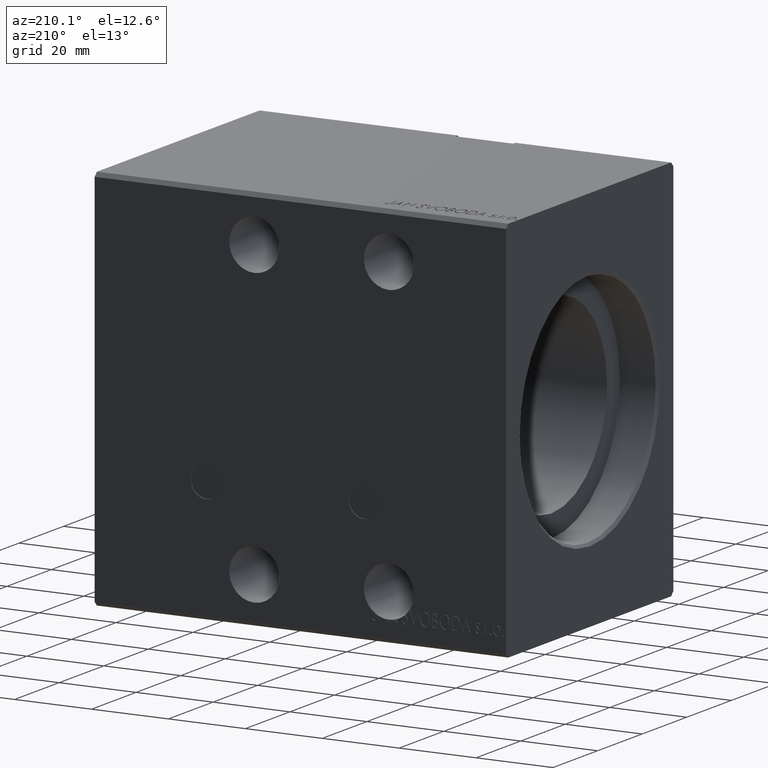
[diagram: clean part render]
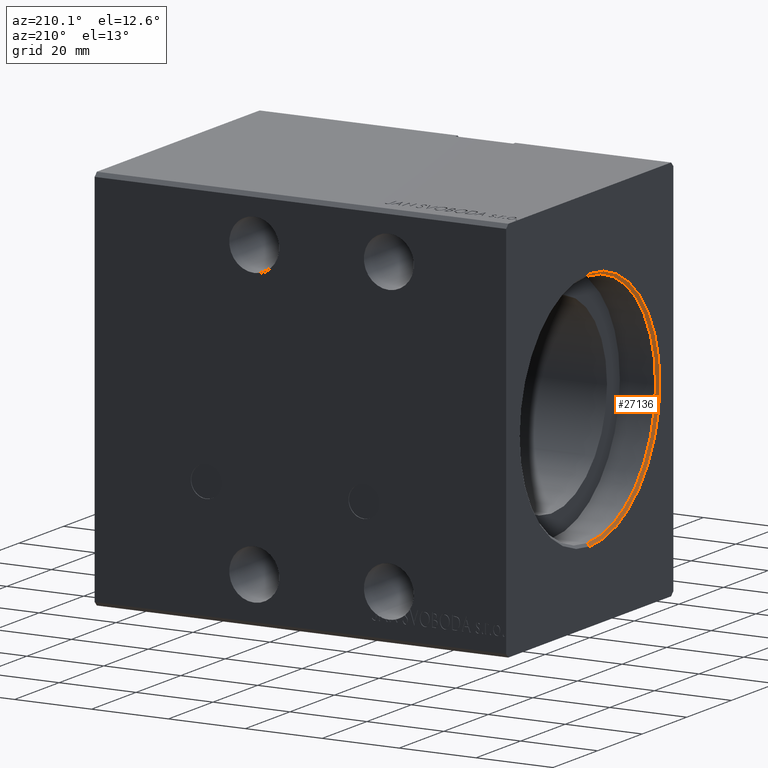
[diagram: same view with one face highlighted and labeled with its STEP entity id]
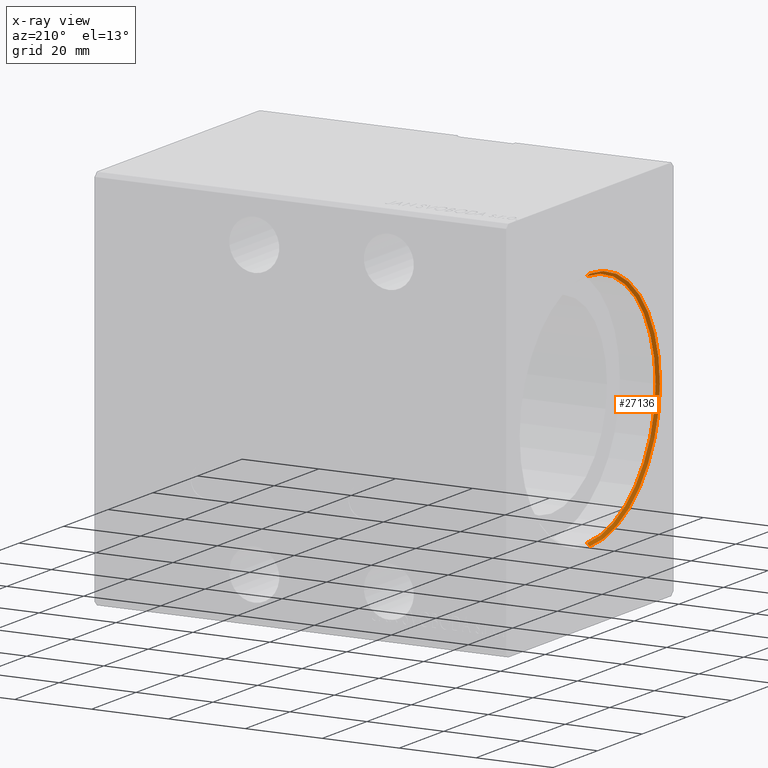
[diagram: x-ray of the same camera — body ghosted, the highlighted face saturated]
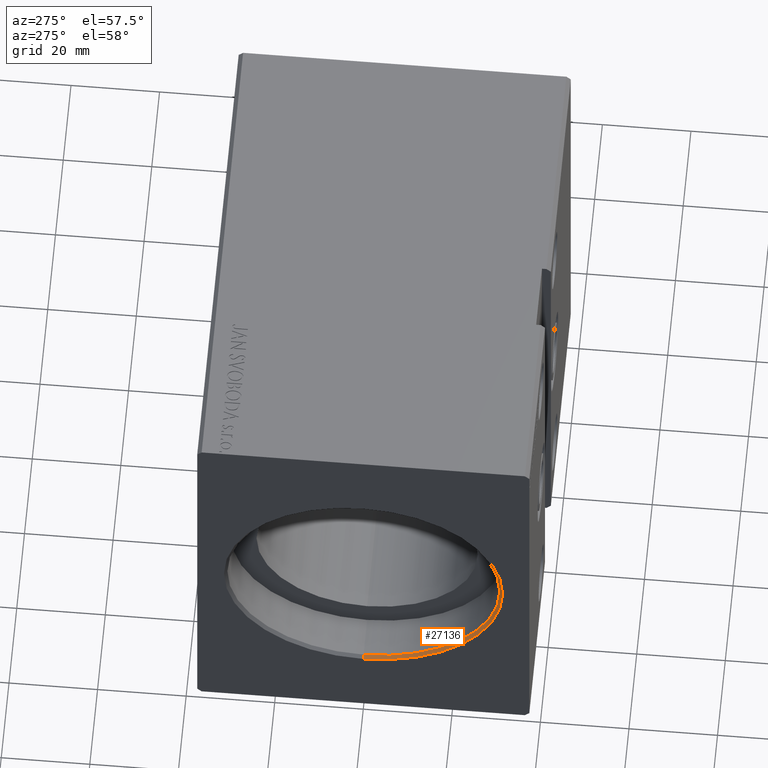
[diagram: same view with one face highlighted and labeled with its STEP entity id]
A machine part, auxiliary view. The second image highlights one B-rep face of the part: STEP entity #27136.
The next image is the same camera in x-ray: the body ghosted, the highlighted face saturated — about 0% of this face is hidden behind the body in this view.
A second angle (auxiliary view) of the same face is appended — the face is thin or edge-on in the first view.
In plain terms, the highlighted conical surface has half-angle 45 deg.
Its self-contained STEP definition (entity closure, byte-faithful):
#361 = DIRECTION ( 'NONE',  ( -0.7071067811865509034, 0.000000000000000000, 0.7071067811865441310 ) ) ;
#425 = CIRCLE ( 'NONE', #30677, 31.45000000000002061 ) ;
#1779 = EDGE_CURVE ( 'NONE', #3117, #29563, #14678, .T. ) ;
#3117 = VERTEX_POINT ( 'NONE', #9029 ) ;
#4215 = DIRECTION ( 'NONE',  ( 1.000000000000000000, 0.000000000000000000, 0.000000000000000000 ) ) ;
#8928 = VECTOR ( 'NONE', #361, 999.9999999999998863 ) ;
#9029 = CARTESIAN_POINT ( 'NONE',  ( 0.7000000000000234923, 3.765788907378111328E-15, -30.75000000000000355 ) ) ;
#10097 = VECTOR ( 'NONE', #17980, 999.9999999999998863 ) ;
#10796 = EDGE_CURVE ( 'NONE', #23700, #29563, #425, .T. ) ;
#11128 = CIRCLE ( 'NONE', #39432, 30.75000000000000355 ) ;
#12082 = DIRECTION ( 'NONE',  ( 0.000000000000000000, 0.000000000000000000, 1.000000000000000000 ) ) ;
#13673 = EDGE_LOOP ( 'NONE', ( #40699, #33289, #13786, #40168 ) ) ;
#13786 = ORIENTED_EDGE ( 'NONE', *, *, #10796, .F. ) ;
#14678 = LINE ( 'NONE', #27259, #10097 ) ;
#16102 = CARTESIAN_POINT ( 'NONE',  ( 0.7000000000000234923, 0.000000000000000000, 30.75000000000000355 ) ) ;
#17980 = DIRECTION ( 'NONE',  ( -0.7071067811865509034, 8.659560562354890950E-17, -0.7071067811865441310 ) ) ;
#18507 = CARTESIAN_POINT ( 'NONE',  ( 0.7000000000000234923, 0.000000000000000000, 30.75000000000000355 ) ) ;
#19080 = CARTESIAN_POINT ( 'NONE',  ( 0.000000000000000000, 0.000000000000000000, 31.45000000000002061 ) ) ;
#19390 = AXIS2_PLACEMENT_3D ( 'NONE', #37242, #21779, #12082 ) ;
#21779 = DIRECTION ( 'NONE',  ( -1.000000000000000000, 0.000000000000000000, 0.000000000000000000 ) ) ;
#23700 = VERTEX_POINT ( 'NONE', #19080 ) ;
#24680 = CARTESIAN_POINT ( 'NONE',  ( 0.7000000000000234923, 0.000000000000000000, 0.000000000000000000 ) ) ;
#25345 = CONICAL_SURFACE ( 'NONE', #19390, 30.75000000000000355, 0.7853981633974433940 ) ;
#26288 = EDGE_CURVE ( 'NONE', #3117, #31291, #11128, .T. ) ;
#27136 = ADVANCED_FACE ( 'NONE', ( #31249 ), #25345, .F. ) ;
#27259 = CARTESIAN_POINT ( 'NONE',  ( 0.7000000000000234923, 3.765788907378110539E-15, -30.75000000000000355 ) ) ;
#29563 = VERTEX_POINT ( 'NONE', #37545 ) ;
#30677 = AXIS2_PLACEMENT_3D ( 'NONE', #38431, #4215, #38834 ) ;
#31249 = FACE_OUTER_BOUND ( 'NONE', #13673, .T. ) ;
#31291 = VERTEX_POINT ( 'NONE', #16102 ) ;
#31686 = LINE ( 'NONE', #18507, #8928 ) ;
#33289 = ORIENTED_EDGE ( 'NONE', *, *, #1779, .T. ) ;
#37242 = CARTESIAN_POINT ( 'NONE',  ( 0.7000000000000234923, 0.000000000000000000, 0.000000000000000000 ) ) ;
#37261 = DIRECTION ( 'NONE',  ( 0.000000000000000000, 0.000000000000000000, -1.000000000000000000 ) ) ;
#37389 = EDGE_CURVE ( 'NONE', #31291, #23700, #31686, .T. ) ;
#37545 = CARTESIAN_POINT ( 'NONE',  ( 0.000000000000000000, 3.851514183318427194E-15, -31.45000000000002061 ) ) ;
#38431 = CARTESIAN_POINT ( 'NONE',  ( 0.000000000000000000, 0.000000000000000000, 0.000000000000000000 ) ) ;
#38834 = DIRECTION ( 'NONE',  ( 0.000000000000000000, 0.000000000000000000, -1.000000000000000000 ) ) ;
#39432 = AXIS2_PLACEMENT_3D ( 'NONE', #24680, #40749, #37261 ) ;
#40168 = ORIENTED_EDGE ( 'NONE', *, *, #37389, .F. ) ;
#40699 = ORIENTED_EDGE ( 'NONE', *, *, #26288, .F. ) ;
#40749 = DIRECTION ( 'NONE',  ( -1.000000000000000000, 0.000000000000000000, 0.000000000000000000 ) ) ;